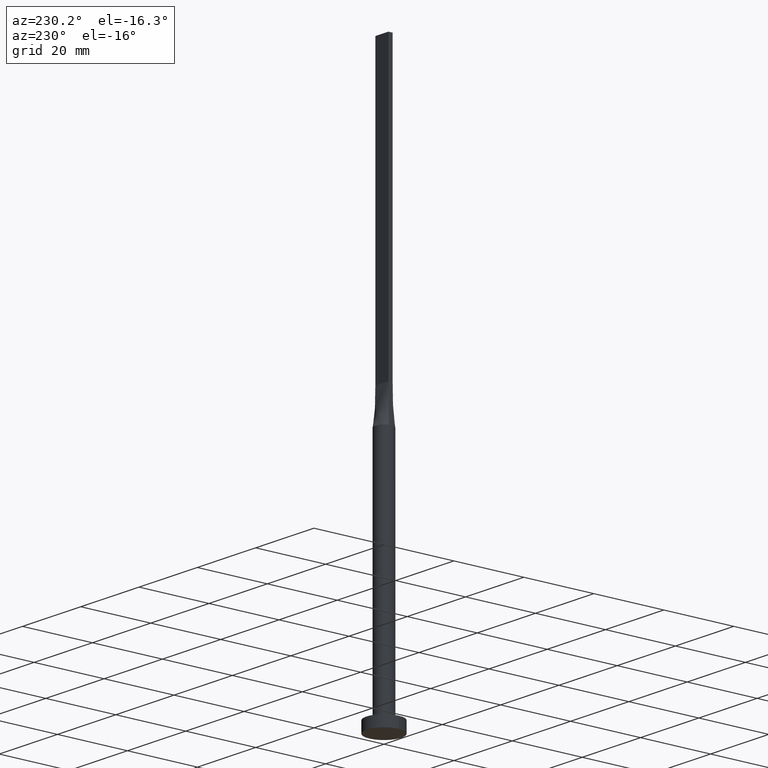
[diagram: clean part render]
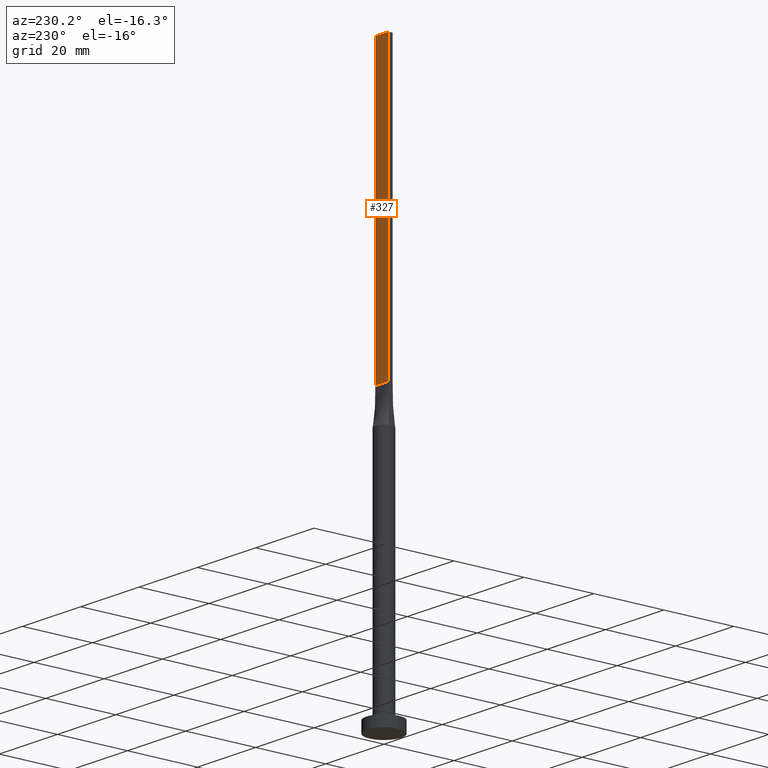
[diagram: same view with one face highlighted and labeled with its STEP entity id]
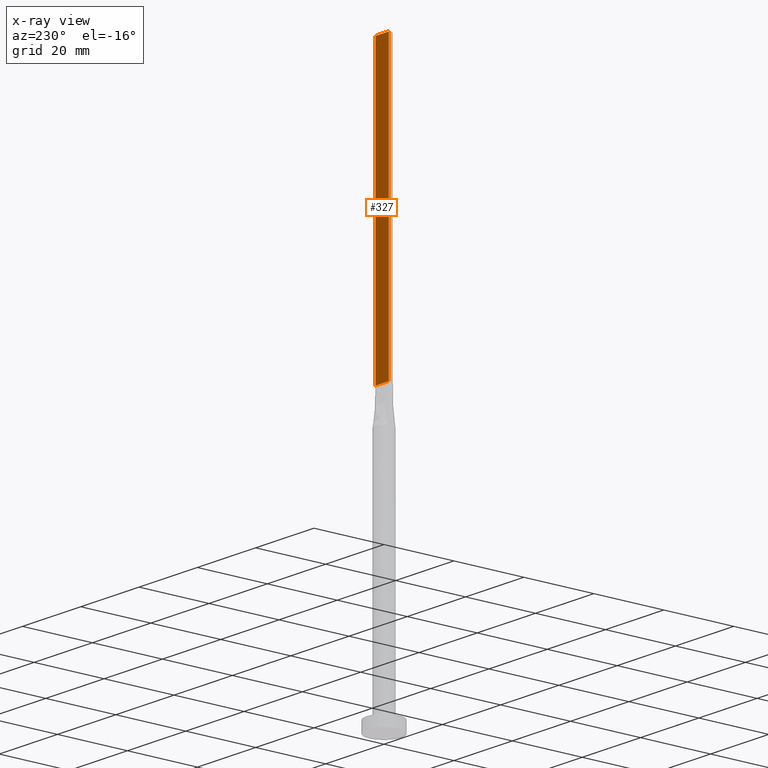
[diagram: x-ray of the same camera — body ghosted, the highlighted face saturated]
A machine part, auxiliary view. The second image highlights one B-rep face of the part: STEP entity #327.
The next image is the same camera in x-ray: the body ghosted, the highlighted face saturated — about 0% of this face is hidden behind the body in this view.
In plain terms, the highlighted planar face has unit normal (0, -1, 0).
Its self-contained STEP definition (entity closure, byte-faithful):
#9 = LINE ( 'NONE', #49, #316 ) ;
#19 = LINE ( 'NONE', #169, #238 ) ;
#38 = ORIENTED_EDGE ( 'NONE', *, *, #408, .F. ) ;
#49 = CARTESIAN_POINT ( 'NONE',  ( -2.249999999999999556, 0.6000000000000001998, 160.0000000000000000 ) ) ;
#57 = DIRECTION ( 'NONE',  ( 0.000000000000000000, -1.000000000000000000, 0.000000000000000000 ) ) ;
#61 = CARTESIAN_POINT ( 'NONE',  ( -2.249999999999999556, 0.6000000000000001998, 80.00000000000000000 ) ) ;
#87 = VERTEX_POINT ( 'NONE', #338 ) ;
#88 = DIRECTION ( 'NONE',  ( -1.000000000000000000, 0.000000000000000000, 0.000000000000000000 ) ) ;
#120 = EDGE_LOOP ( 'NONE', ( #346, #449, #38, #228 ) ) ;
#131 = CARTESIAN_POINT ( 'NONE',  ( 2.249999999999999556, 0.6000000000000001998, 160.0000000000000000 ) ) ;
#145 = FACE_OUTER_BOUND ( 'NONE', #120, .T. ) ;
#163 = DIRECTION ( 'NONE',  ( -0.000000000000000000, -0.000000000000000000, -1.000000000000000000 ) ) ;
#169 = CARTESIAN_POINT ( 'NONE',  ( 2.249999999999999556, 0.6000000000000001998, 160.0000000000000000 ) ) ;
#175 = VECTOR ( 'NONE', #88, 1000.000000000000000 ) ;
#199 = EDGE_CURVE ( 'NONE', #527, #485, #222, .T. ) ;
#222 = LINE ( 'NONE', #266, #385 ) ;
#228 = ORIENTED_EDGE ( 'NONE', *, *, #495, .T. ) ;
#234 = DIRECTION ( 'NONE',  ( 0.000000000000000000, -0.000000000000000000, -1.000000000000000000 ) ) ;
#238 = VECTOR ( 'NONE', #163, 1000.000000000000000 ) ;
#266 = CARTESIAN_POINT ( 'NONE',  ( -2.249999999999999556, 0.6000000000000001998, 80.00000000000000000 ) ) ;
#312 = LINE ( 'NONE', #131, #175 ) ;
#316 = VECTOR ( 'NONE', #459, 1000.000000000000000 ) ;
#323 = EDGE_CURVE ( 'NONE', #492, #485, #9, .T. ) ;
#327 = ADVANCED_FACE ( 'NONE', ( #145 ), #448, .F. ) ;
#338 = CARTESIAN_POINT ( 'NONE',  ( 2.249999999999999556, 0.6000000000000001998, 160.0000000000000000 ) ) ;
#346 = ORIENTED_EDGE ( 'NONE', *, *, #199, .T. ) ;
#351 = DIRECTION ( 'NONE',  ( -1.000000000000000000, -0.000000000000000000, -0.000000000000000000 ) ) ;
#385 = VECTOR ( 'NONE', #351, 1000.000000000000000 ) ;
#408 = EDGE_CURVE ( 'NONE', #87, #492, #312, .T. ) ;
#416 = AXIS2_PLACEMENT_3D ( 'NONE', #546, #57, #234 ) ;
#448 = PLANE ( 'NONE',  #416 ) ;
#449 = ORIENTED_EDGE ( 'NONE', *, *, #323, .F. ) ;
#459 = DIRECTION ( 'NONE',  ( -0.000000000000000000, -0.000000000000000000, -1.000000000000000000 ) ) ;
#468 = CARTESIAN_POINT ( 'NONE',  ( -2.249999999999999556, 0.6000000000000001998, 160.0000000000000000 ) ) ;
#485 = VERTEX_POINT ( 'NONE', #61 ) ;
#492 = VERTEX_POINT ( 'NONE', #468 ) ;
#495 = EDGE_CURVE ( 'NONE', #87, #527, #19, .T. ) ;
#527 = VERTEX_POINT ( 'NONE', #528 ) ;
#528 = CARTESIAN_POINT ( 'NONE',  ( 2.249999999999999556, 0.6000000000000001998, 80.00000000000000000 ) ) ;
#546 = CARTESIAN_POINT ( 'NONE',  ( 2.249999999999999556, 0.6000000000000001998, 160.0000000000000000 ) ) ;